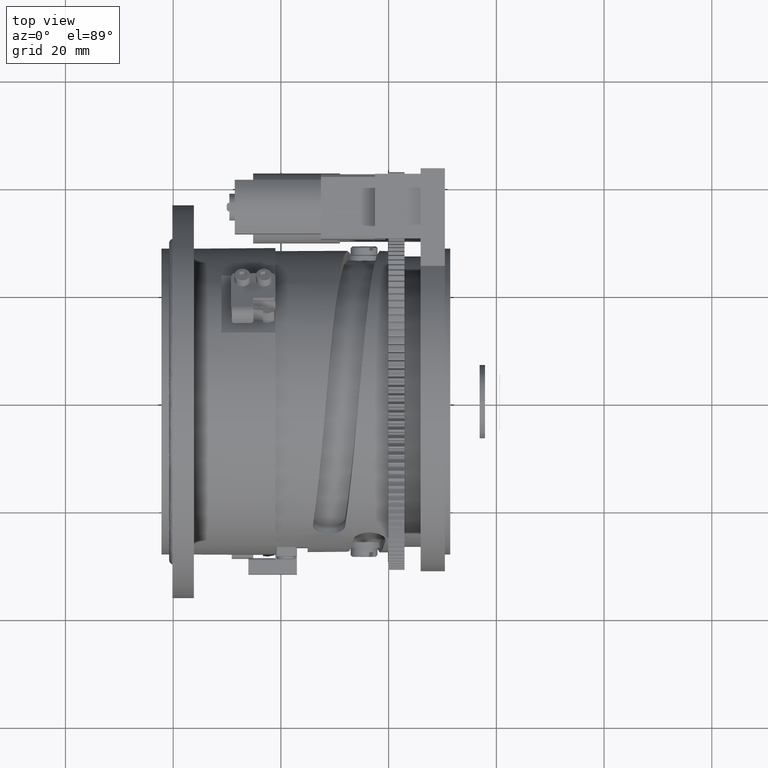
[diagram: clean part render]
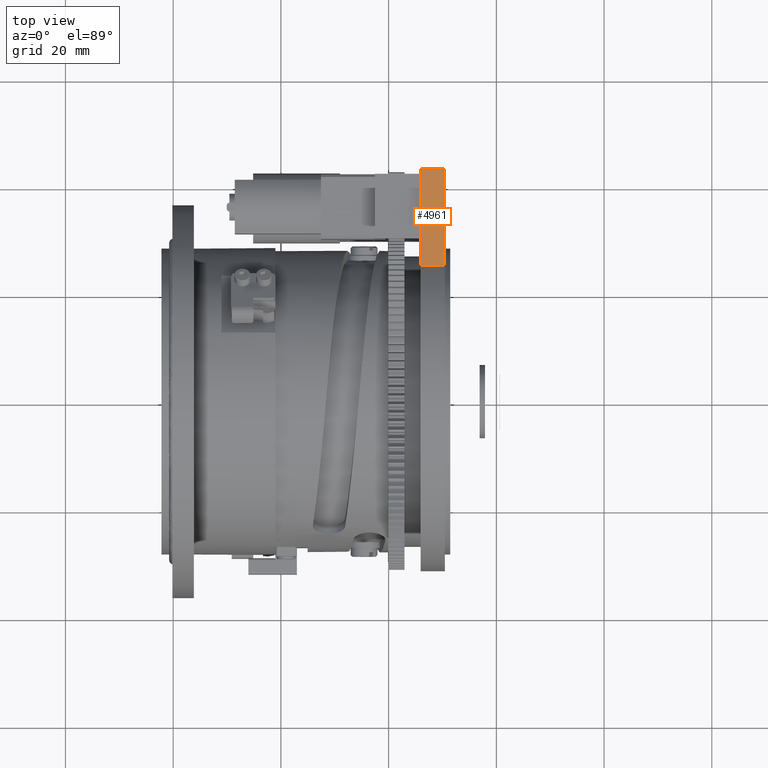
[diagram: same view with one face highlighted and labeled with its STEP entity id]
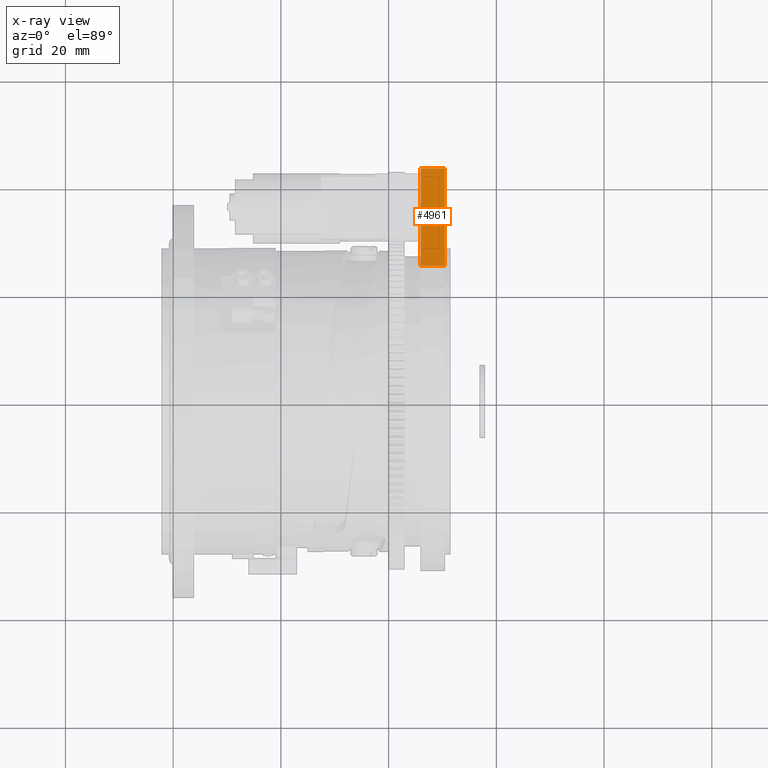
[diagram: x-ray of the same camera — body ghosted, the highlighted face saturated]
A machine part, top view. The second image highlights one B-rep face of the part: STEP entity #4961.
The next image is the same camera in x-ray: the body ghosted, the highlighted face saturated — about 0% of this face is hidden behind the body in this view.
In plain terms, the highlighted planar face has unit normal (0, 0, 1).
Its self-contained STEP definition (entity closure, byte-faithful):
#902 = LINE ( 'NONE', #35860, #50276 ) ;
#4961 = ADVANCED_FACE ( 'NONE', ( #51584 ), #55931, .T. ) ;
#5016 = EDGE_LOOP ( 'NONE', ( #28734, #53080, #36142, #28238 ) ) ;
#12587 = CARTESIAN_POINT ( 'NONE',  ( 45.94000000000000483, 24.86584002200608978, 19.50000000000000000 ) ) ;
#12881 = AXIS2_PLACEMENT_3D ( 'NONE', #21499, #43516, #33633 ) ;
#16483 = DIRECTION ( 'NONE',  ( 0.000000000000000000, 1.000000000000000000, -0.000000000000000000 ) ) ;
#19563 = CARTESIAN_POINT ( 'NONE',  ( 50.43999999999999773, 24.86584002200608978, 19.50000000000000000 ) ) ;
#20765 = VECTOR ( 'NONE', #16483, 1000.000000000000000 ) ;
#21499 = CARTESIAN_POINT ( 'NONE',  ( 93.44985652274924348, 43.00000000000000000, 19.50000000000000000 ) ) ;
#25478 = LINE ( 'NONE', #55314, #34779 ) ;
#26260 = CARTESIAN_POINT ( 'NONE',  ( 45.94000000000000483, 27.00000000000000000, 19.50000000000000000 ) ) ;
#26659 = CARTESIAN_POINT ( 'NONE',  ( 45.94000000000000483, 43.00000000000000000, 19.50000000000000000 ) ) ;
#28238 = ORIENTED_EDGE ( 'NONE', *, *, #31451, .T. ) ;
#28734 = ORIENTED_EDGE ( 'NONE', *, *, #53853, .F. ) ;
#31132 = DIRECTION ( 'NONE',  ( -0.000000000000000000, 1.000000000000000000, 0.000000000000000000 ) ) ;
#31451 = EDGE_CURVE ( 'NONE', #40789, #33065, #45033, .T. ) ;
#31505 = DIRECTION ( 'NONE',  ( 1.000000000000000000, 0.000000000000000000, -0.000000000000000000 ) ) ;
#32506 = EDGE_CURVE ( 'NONE', #33783, #40789, #902, .T. ) ;
#33065 = VERTEX_POINT ( 'NONE', #48035 ) ;
#33102 = EDGE_CURVE ( 'NONE', #33783, #43711, #34397, .T. ) ;
#33633 = DIRECTION ( 'NONE',  ( 1.000000000000000000, 0.000000000000000000, -0.000000000000000000 ) ) ;
#33783 = VERTEX_POINT ( 'NONE', #12587 ) ;
#34397 = LINE ( 'NONE', #26260, #20765 ) ;
#34779 = VECTOR ( 'NONE', #38524, 1000.000000000000000 ) ;
#35860 = CARTESIAN_POINT ( 'NONE',  ( 93.44985652274924348, 24.86584002200608978, 19.50000000000000000 ) ) ;
#36142 = ORIENTED_EDGE ( 'NONE', *, *, #32506, .T. ) ;
#38524 = DIRECTION ( 'NONE',  ( 1.000000000000000000, 0.000000000000000000, -0.000000000000000000 ) ) ;
#40789 = VERTEX_POINT ( 'NONE', #19563 ) ;
#43516 = DIRECTION ( 'NONE',  ( 0.000000000000000000, 0.000000000000000000, 1.000000000000000000 ) ) ;
#43711 = VERTEX_POINT ( 'NONE', #26659 ) ;
#45033 = LINE ( 'NONE', #45320, #50467 ) ;
#45320 = CARTESIAN_POINT ( 'NONE',  ( 50.43999999999999773, 43.00000000000000000, 19.50000000000000000 ) ) ;
#48035 = CARTESIAN_POINT ( 'NONE',  ( 50.44000000000000483, 43.00000000000000000, 19.50000000000000000 ) ) ;
#50276 = VECTOR ( 'NONE', #31505, 1000.000000000000000 ) ;
#50467 = VECTOR ( 'NONE', #31132, 1000.000000000000000 ) ;
#51584 = FACE_OUTER_BOUND ( 'NONE', #5016, .T. ) ;
#53080 = ORIENTED_EDGE ( 'NONE', *, *, #33102, .F. ) ;
#53853 = EDGE_CURVE ( 'NONE', #43711, #33065, #25478, .T. ) ;
#55314 = CARTESIAN_POINT ( 'NONE',  ( 93.44985652274924348, 43.00000000000000000, 19.50000000000000000 ) ) ;
#55931 = PLANE ( 'NONE',  #12881 ) ;